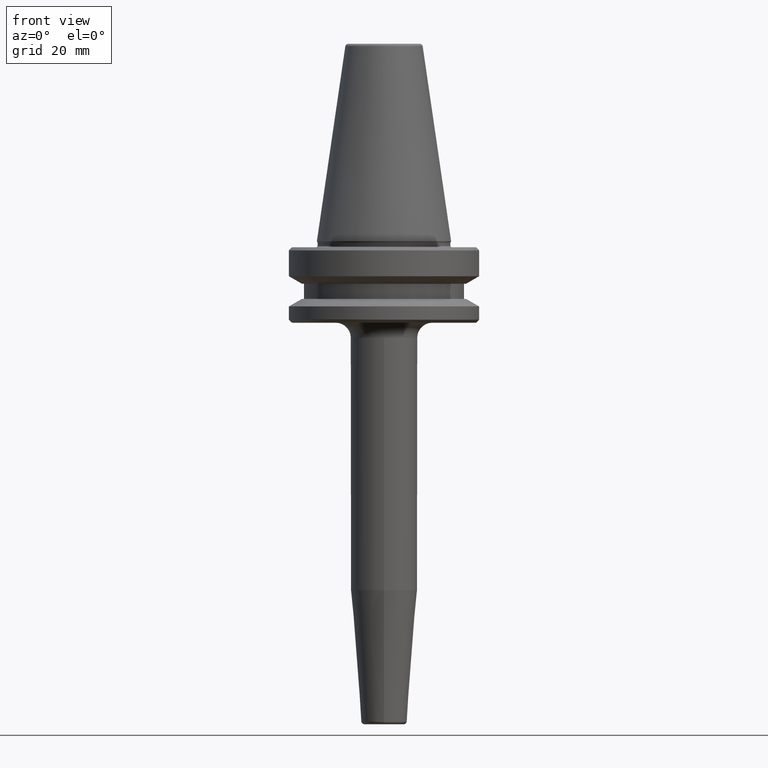
[diagram: clean part render]
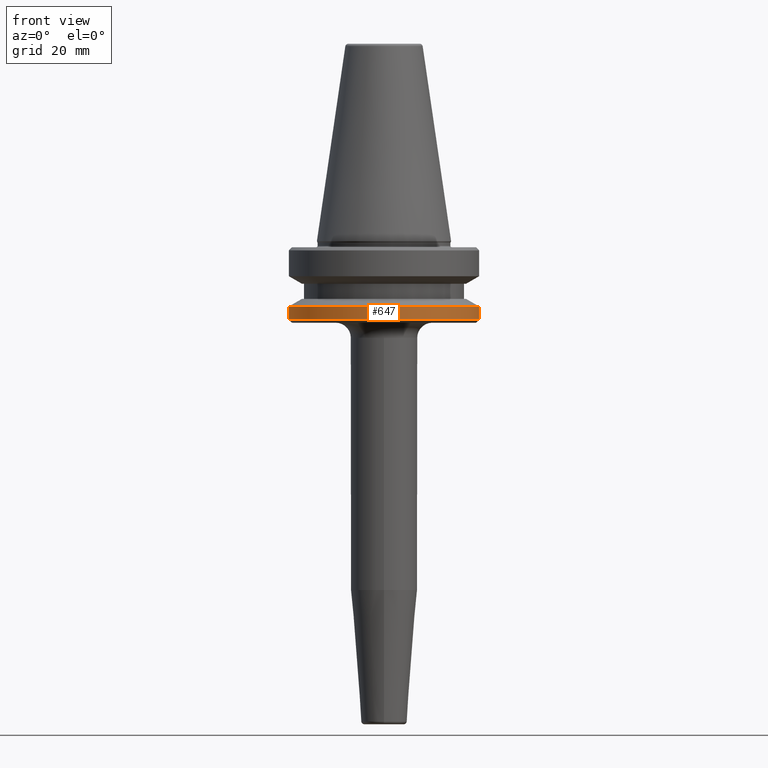
[diagram: same view with one face highlighted and labeled with its STEP entity id]
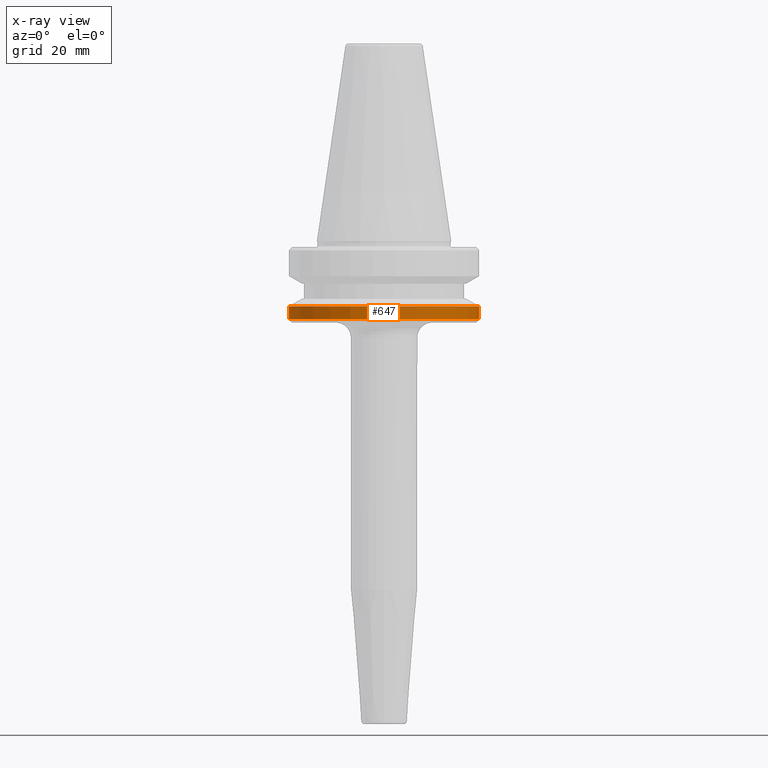
[diagram: x-ray of the same camera — body ghosted, the highlighted face saturated]
A machine part, front view. The second image highlights one B-rep face of the part: STEP entity #647.
The next image is the same camera in x-ray: the body ghosted, the highlighted face saturated — about 0% of this face is hidden behind the body in this view.
In plain terms, the highlighted cylindrical surface (partial cylindrical patch) has radius 31.5 mm, axis along (-0, -0, 1).
Its self-contained STEP definition (entity closure, byte-faithful):
#25 = VERTEX_POINT ( 'NONE', #39 ) ;
#39 = CARTESIAN_POINT ( 'NONE',  ( 31.50000000000000000, 0.0000000000000000000, -25.83431457505076900 ) ) ;
#91 = CARTESIAN_POINT ( 'NONE',  ( 31.50000000000000000, 0.0000000000000000000, 69.75694866325665100 ) ) ;
#138 = AXIS2_PLACEMENT_3D ( 'NONE', #296, #186, #1169 ) ;
#186 = DIRECTION ( 'NONE',  ( -0.0000000000000000000, -0.0000000000000000000, 1.000000000000000000 ) ) ;
#222 = EDGE_CURVE ( 'NONE', #857, #25, #317, .T. ) ;
#250 = EDGE_CURVE ( 'NONE', #981, #933, #763, .T. ) ;
#296 = CARTESIAN_POINT ( 'NONE',  ( 0.0000000000000000000, 0.0000000000000000000, -25.83431457505076900 ) ) ;
#317 = CIRCLE ( 'NONE', #138, 31.50000000000000000 ) ;
#401 = DIRECTION ( 'NONE',  ( 1.000000000000000000, 0.0000000000000000000, 0.0000000000000000000 ) ) ;
#421 = ORIENTED_EDGE ( 'NONE', *, *, #737, .T. ) ;
#449 = VECTOR ( 'NONE', #680, 1000.000000000000000 ) ;
#481 = LINE ( 'NONE', #91, #449 ) ;
#521 = DIRECTION ( 'NONE',  ( -0.0000000000000000000, -0.0000000000000000000, 1.000000000000000000 ) ) ;
#612 = ORIENTED_EDGE ( 'NONE', *, *, #222, .T. ) ;
#647 = ADVANCED_FACE ( 'NONE', ( #817 ), #795, .T. ) ;
#679 = DIRECTION ( 'NONE',  ( -0.0000000000000000000, -0.0000000000000000000, 1.000000000000000000 ) ) ;
#680 = DIRECTION ( 'NONE',  ( -0.0000000000000000000, -0.0000000000000000000, 1.000000000000000000 ) ) ;
#693 = DIRECTION ( 'NONE',  ( 1.000000000000000000, 0.0000000000000000000, 0.0000000000000000000 ) ) ;
#728 = EDGE_LOOP ( 'NONE', ( #921, #612, #421, #830 ) ) ;
#736 = CARTESIAN_POINT ( 'NONE',  ( -31.50000000000000000, 3.857637417314162700E-015, -21.60014200631675500 ) ) ;
#737 = EDGE_CURVE ( 'NONE', #25, #933, #481, .T. ) ;
#763 = CIRCLE ( 'NONE', #909, 31.50000000000000000 ) ;
#785 = CARTESIAN_POINT ( 'NONE',  ( 0.0000000000000000000, 0.0000000000000000000, 69.75694866325665100 ) ) ;
#795 = CYLINDRICAL_SURFACE ( 'NONE', #1098, 31.50000000000000000 ) ;
#817 = FACE_OUTER_BOUND ( 'NONE', #728, .T. ) ;
#830 = ORIENTED_EDGE ( 'NONE', *, *, #250, .F. ) ;
#857 = VERTEX_POINT ( 'NONE', #886 ) ;
#886 = CARTESIAN_POINT ( 'NONE',  ( -31.50000000000000000, 3.857637417314162700E-015, -25.83431457505076900 ) ) ;
#899 = CARTESIAN_POINT ( 'NONE',  ( -31.50000000000000000, 3.857637417314162700E-015, 69.75694866325665100 ) ) ;
#909 = AXIS2_PLACEMENT_3D ( 'NONE', #1184, #1187, #693 ) ;
#921 = ORIENTED_EDGE ( 'NONE', *, *, #1192, .F. ) ;
#926 = CARTESIAN_POINT ( 'NONE',  ( 31.50000000000000000, 0.0000000000000000000, -21.60014200631675500 ) ) ;
#933 = VERTEX_POINT ( 'NONE', #926 ) ;
#934 = VECTOR ( 'NONE', #521, 1000.000000000000000 ) ;
#981 = VERTEX_POINT ( 'NONE', #736 ) ;
#1098 = AXIS2_PLACEMENT_3D ( 'NONE', #785, #679, #401 ) ;
#1169 = DIRECTION ( 'NONE',  ( 1.000000000000000000, 0.0000000000000000000, 0.0000000000000000000 ) ) ;
#1184 = CARTESIAN_POINT ( 'NONE',  ( 0.0000000000000000000, 0.0000000000000000000, -21.60014200631675500 ) ) ;
#1187 = DIRECTION ( 'NONE',  ( -0.0000000000000000000, -0.0000000000000000000, 1.000000000000000000 ) ) ;
#1192 = EDGE_CURVE ( 'NONE', #857, #981, #1203, .T. ) ;
#1203 = LINE ( 'NONE', #899, #934 ) ;